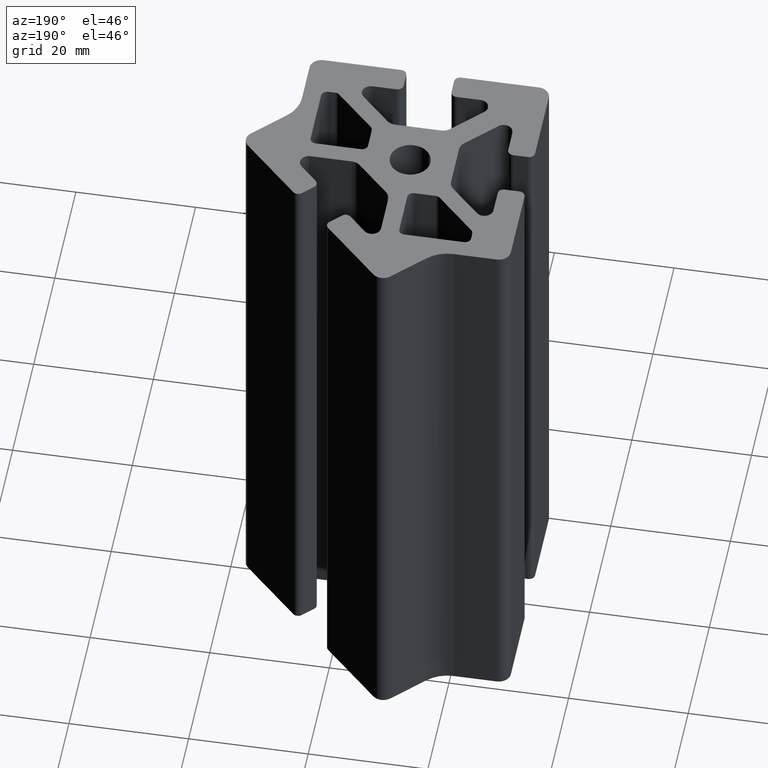
[diagram: clean part render]
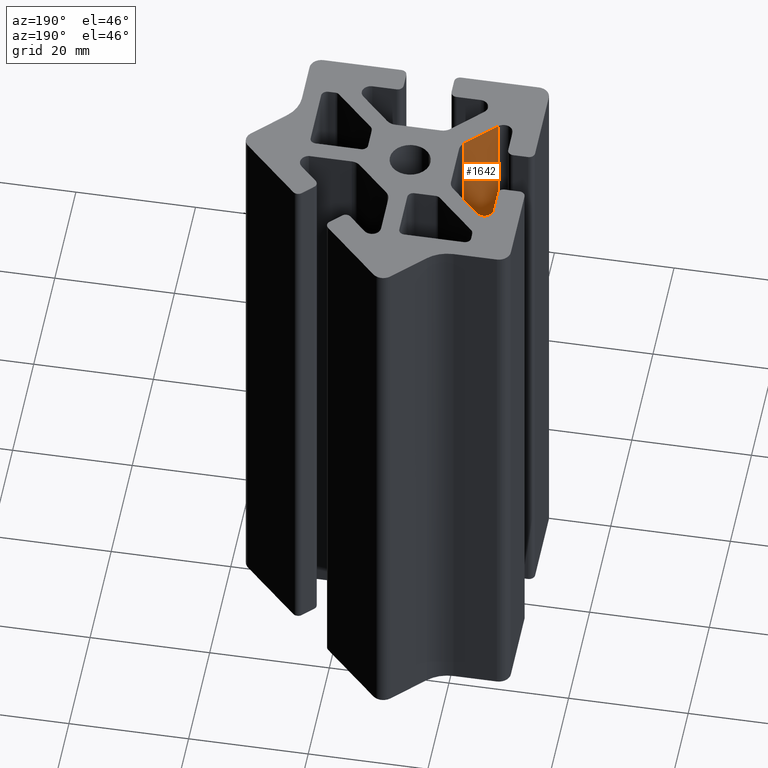
[diagram: same view with one face highlighted and labeled with its STEP entity id]
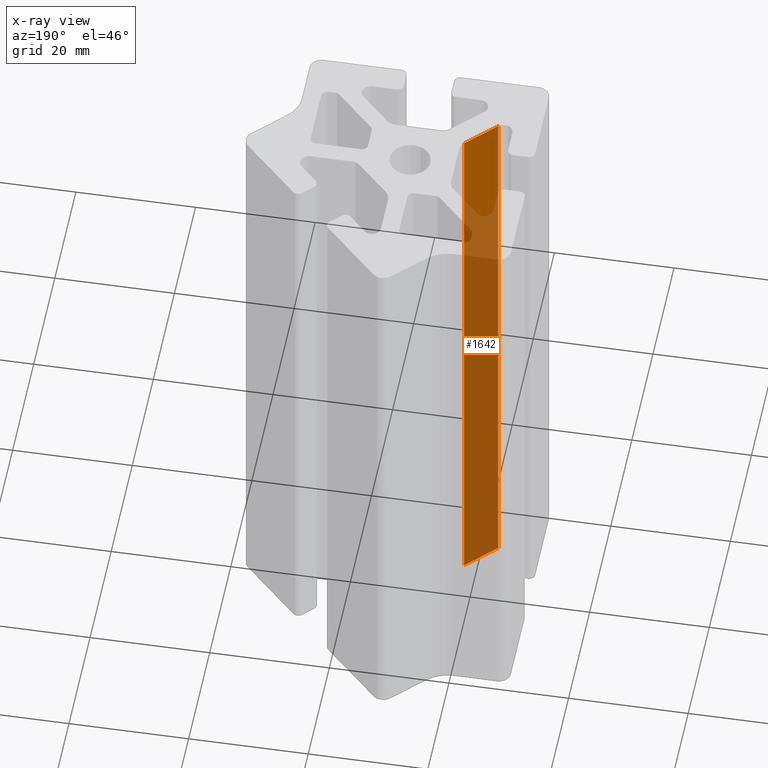
[diagram: x-ray of the same camera — body ghosted, the highlighted face saturated]
A machine part, auxiliary view. The second image highlights one B-rep face of the part: STEP entity #1642.
The next image is the same camera in x-ray: the body ghosted, the highlighted face saturated — about 82% of this face is hidden behind the body in this view.
In plain terms, the highlighted planar face has unit normal (-0.7071, 0.7071, 0).
Its self-contained STEP definition (entity closure, byte-faithful):
#164=FACE_OUTER_BOUND('',#250,.T.);
#250=EDGE_LOOP('',(#1144,#1145,#1146,#1147));
#359=LINE('',#2491,#526);
#360=LINE('',#2495,#527);
#361=LINE('',#2497,#528);
#362=LINE('',#2498,#529);
#526=VECTOR('',#1980,100.);
#527=VECTOR('',#1985,6.86394783925789);
#528=VECTOR('',#1986,100.);
#529=VECTOR('',#1987,6.86394783925789);
#693=VERTEX_POINT('',#2488);
#694=VERTEX_POINT('',#2490);
#695=VERTEX_POINT('',#2494);
#696=VERTEX_POINT('',#2496);
#876=EDGE_CURVE('',#693,#694,#359,.T.);
#878=EDGE_CURVE('',#693,#695,#360,.T.);
#879=EDGE_CURVE('',#695,#696,#361,.T.);
#880=EDGE_CURVE('',#694,#696,#362,.T.);
#1144=ORIENTED_EDGE('',*,*,#878,.T.);
#1145=ORIENTED_EDGE('',*,*,#879,.T.);
#1146=ORIENTED_EDGE('',*,*,#880,.F.);
#1147=ORIENTED_EDGE('',*,*,#876,.F.);
#1590=PLANE('',#1746);
#1642=ADVANCED_FACE('',(#164),#1590,.T.);
#1746=AXIS2_PLACEMENT_3D('',#2493,#1983,#1984);
#1980=DIRECTION('',(0.,0.,1.));
#1983=DIRECTION('center_axis',(-0.707106781193831,0.707106781179264,0.));
#1984=DIRECTION('ref_axis',(0.,0.,1.));
#1985=DIRECTION('',(-0.707106781179264,-0.707106781193831,0.));
#1986=DIRECTION('',(0.,0.,1.));
#1987=DIRECTION('',(-0.707106781179264,-0.707106781193831,0.));
#2488=CARTESIAN_POINT('',(41.9142513515431,-5.25734422522919,0.));
#2490=CARTESIAN_POINT('',(41.9142513515431,-5.25734422522919,100.));
#2491=CARTESIAN_POINT('',(41.9142513515431,-5.25734422522919,0.));
#2493=CARTESIAN_POINT('Origin',(41.9142513515431,-5.25734422522919,0.));
#2494=CARTESIAN_POINT('',(37.0607072887431,-10.1108882881292,0.));
#2495=CARTESIAN_POINT('',(41.9142513515431,-5.25734422522919,0.));
#2496=CARTESIAN_POINT('',(37.0607072887431,-10.1108882881292,100.));
#2497=CARTESIAN_POINT('',(37.0607072887431,-10.1108882881292,0.));
#2498=CARTESIAN_POINT('',(41.9142513515431,-5.25734422522919,100.));